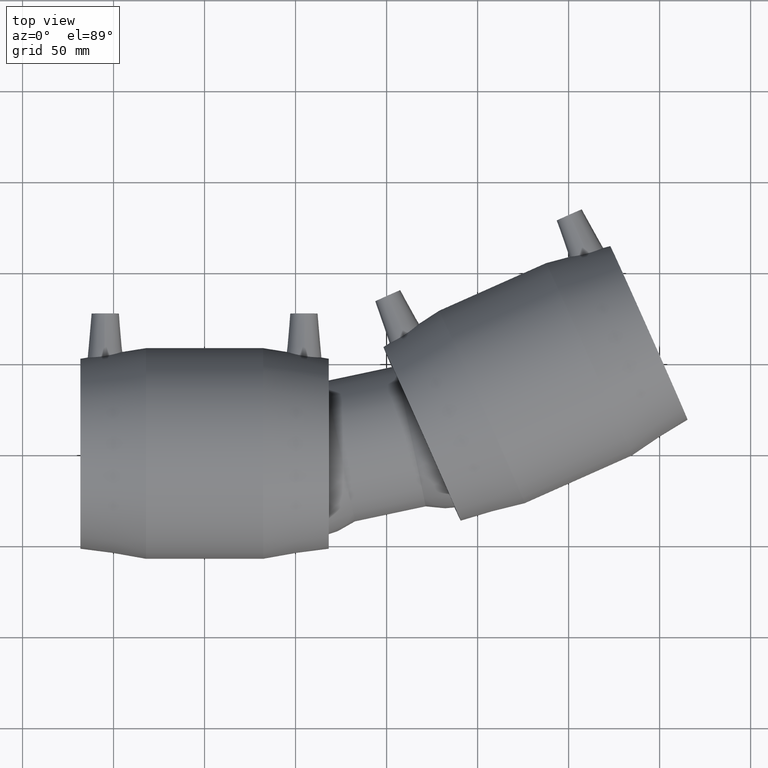
[diagram: clean part render]
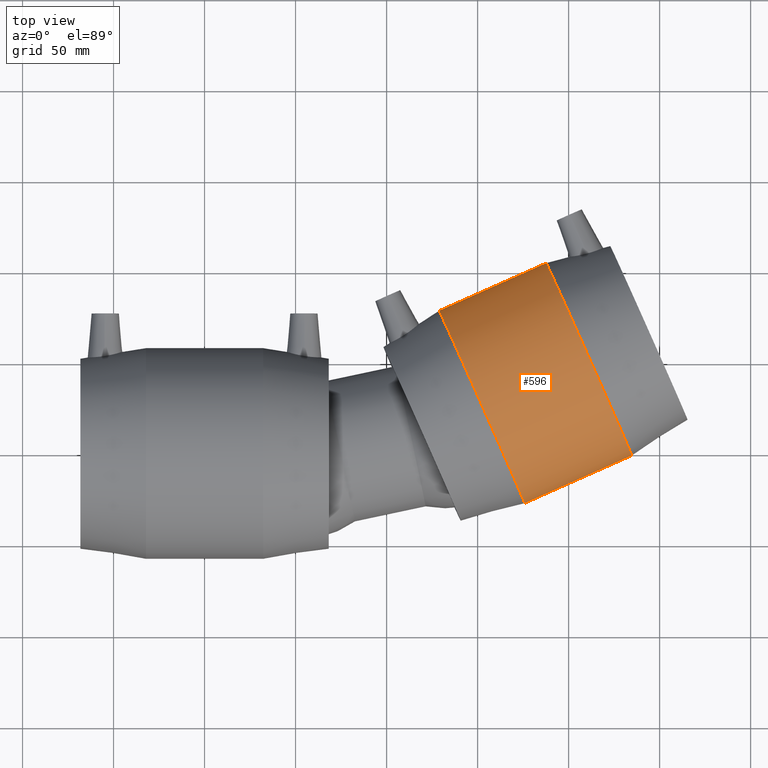
[diagram: same view with one face highlighted and labeled with its STEP entity id]
A machine part, top view. The second image highlights one B-rep face of the part: STEP entity #596.
In plain terms, the highlighted cylindrical surface (bore or boss wall) has radius 58 mm, axis along (0.9135, 0.4067, 0).
Its self-contained STEP definition (entity closure, byte-faithful):
#61=CYLINDRICAL_SURFACE('',#690,58.);
#102=FACE_BOUND('',#250,.T.);
#158=FACE_OUTER_BOUND('',#249,.T.);
#249=EDGE_LOOP('',(#524));
#250=EDGE_LOOP('',(#525));
#319=CIRCLE('',#691,58.);
#320=CIRCLE('',#692,58.);
#371=VERTEX_POINT('',#1364);
#372=VERTEX_POINT('',#1366);
#427=EDGE_CURVE('',#371,#371,#319,.T.);
#428=EDGE_CURVE('',#372,#372,#320,.T.);
#524=ORIENTED_EDGE('',*,*,#427,.T.);
#525=ORIENTED_EDGE('',*,*,#428,.F.);
#596=ADVANCED_FACE('',(#158,#102),#61,.T.);
#690=AXIS2_PLACEMENT_3D('',#1363,#875,#876);
#691=AXIS2_PLACEMENT_3D('',#1365,#877,#878);
#692=AXIS2_PLACEMENT_3D('',#1367,#879,#880);
#875=DIRECTION('center_axis',(0.913545457642601,0.406736643075801,1.19788532833232E-16));
#876=DIRECTION('ref_axis',(-0.406736643075801,0.913545457642601,-2.54618386665283E-17));
#877=DIRECTION('center_axis',(0.913545457642601,0.406736643075801,1.19788532833232E-16));
#878=DIRECTION('ref_axis',(1.19788532833232E-16,2.54618386665284E-17,-1.));
#879=DIRECTION('center_axis',(0.913545457642601,0.406736643075801,1.19788532833232E-16));
#880=DIRECTION('ref_axis',(1.19788532833232E-16,2.54618386665284E-17,-1.));
#1363=CARTESIAN_POINT('Origin',(181.812878870446,38.6455204000302,1.13815420078432E-14));
#1364=CARTESIAN_POINT('',(128.805989835958,78.5342370362603,6.04756460795448E-15));
#1365=CARTESIAN_POINT('Origin',(152.396715134354,25.5486004929895,7.52435125061312E-15));
#1366=CARTESIAN_POINT('',(187.638317308141,104.728076850342,1.37619461224146E-14));
#1367=CARTESIAN_POINT('Origin',(211.229042606537,51.742440307071,1.52387327650733E-14));